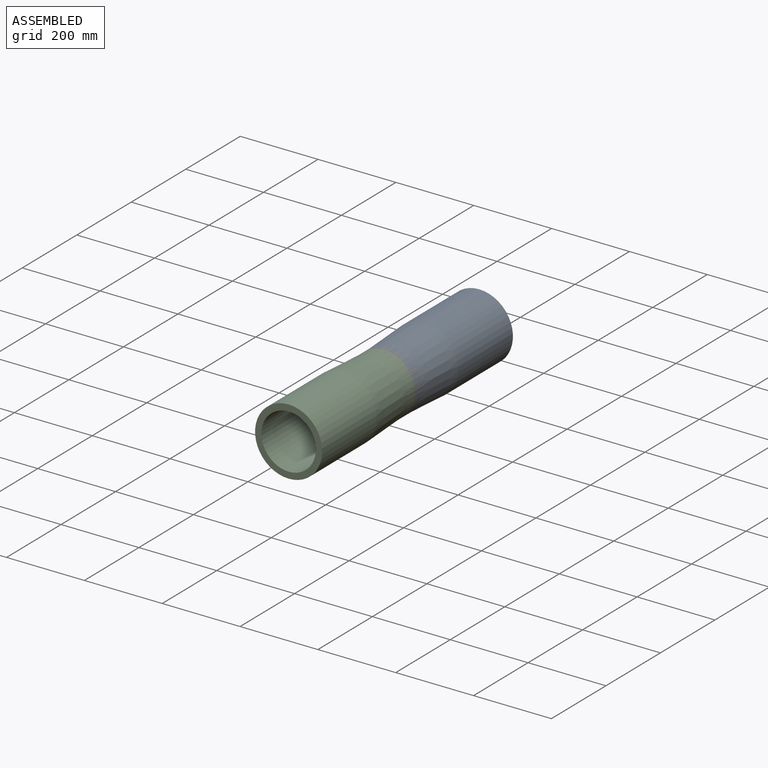
[diagram: assembled view]
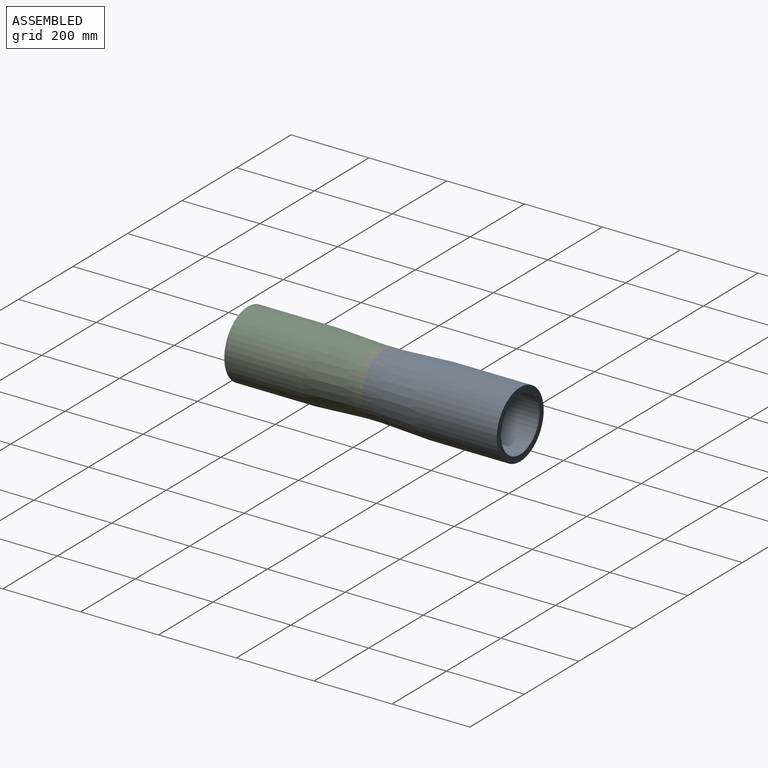
[diagram: assembled view, second angle]
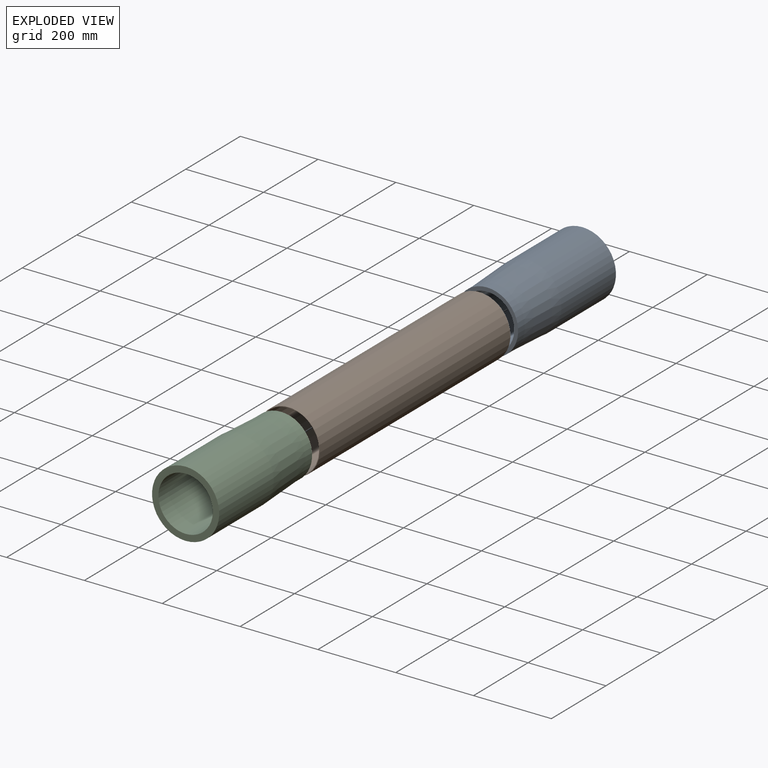
[diagram: exploded view]
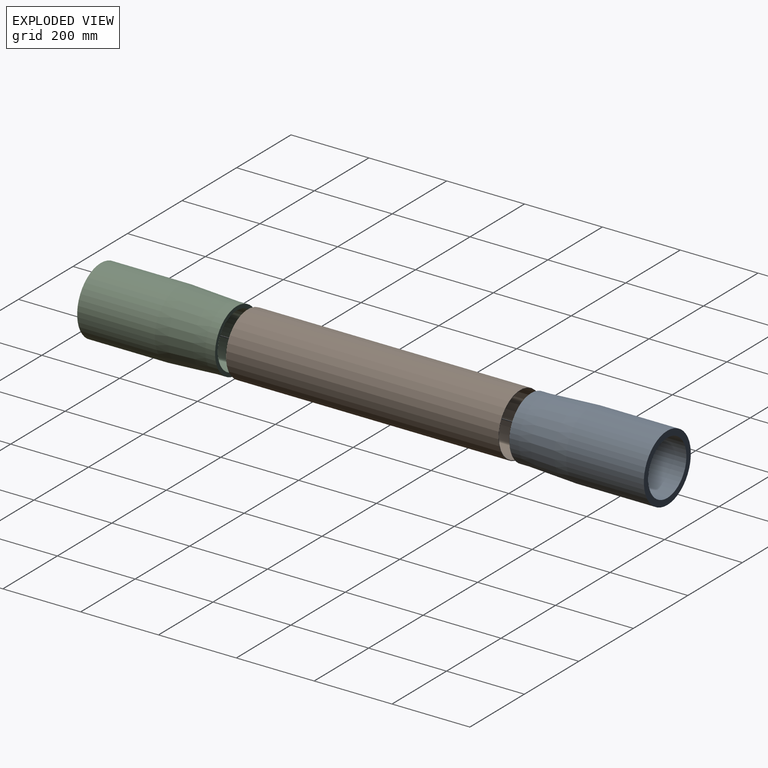
[diagram: exploded view, second angle]
ASSEMBLY  parts=3 mates=2
PART A: 8 faces, bbox 172.5x350x172.5 mm
  f0: cone r=86.25mm half-angle=2.9deg, axis (0,1,0), area 64323.2mm2, adj f6,f7
  f1: cylinder r=80mm len=160mm, axis (0,-1,0), area 12063.7mm2, adj f2,f6
  f2: plane 160x160mm, normal (0,-1,0), area 4712.4mm2, adj f1,f3
  f3: cylinder r=70mm len=350mm, axis (0,-1,0), area 153938mm2, adj f2,f4
  f4: plane 172.5x172.5mm, normal (0,1,0), area 7976.7mm2, adj f3,f5
  f5: cylinder r=86.25mm len=199mm, axis (0,-1,0), area 107843mm2, adj f4,f7
  f6: cone r=80mm half-angle=1.4deg, axis (0,1,0), area 1005.3mm2, adj f0,f1
  f7: cone r=86.2mm half-angle=1.4deg, axis (0,1,0), area 1083.2mm2, adj f0,f5
PART B: 4 faces, bbox 160x700x160 mm
  f0: cylinder r=78.5mm len=700mm, axis (0,1,0), area 345261mm2, adj f2,f3
  f1: cylinder r=80mm len=700mm, axis (0,1,0), area 351858.4mm2, adj f2,f3
  f2: plane 160x160mm, normal (0,-1,0), area 746.9mm2, adj f0,f1
  f3: plane 160x160mm, normal (0,1,0), area 746.9mm2, adj f0,f1
PART C: same geometry as A
PLACE A rot(axis=(1,-0.03,0.03),0deg) t=(75.31,-942.76,17.68)mm
PLACE B rot(axis=(1,-0.03,0.03),0deg) t=(75.31,-658.03,8.23)mm fixed
PLACE C rot(axis=(-1,0,0),180deg) t=(75.31,-1073.3,-1.22)mm
MATE revolute A.f0 <-> B.f0  axis (0,-1,0) through (75.31,-658.03,8.23)mm
MATE revolute C.f0 <-> B.f0  axis (0,-1,0) through (75.31,-1358.03,8.23)mm
